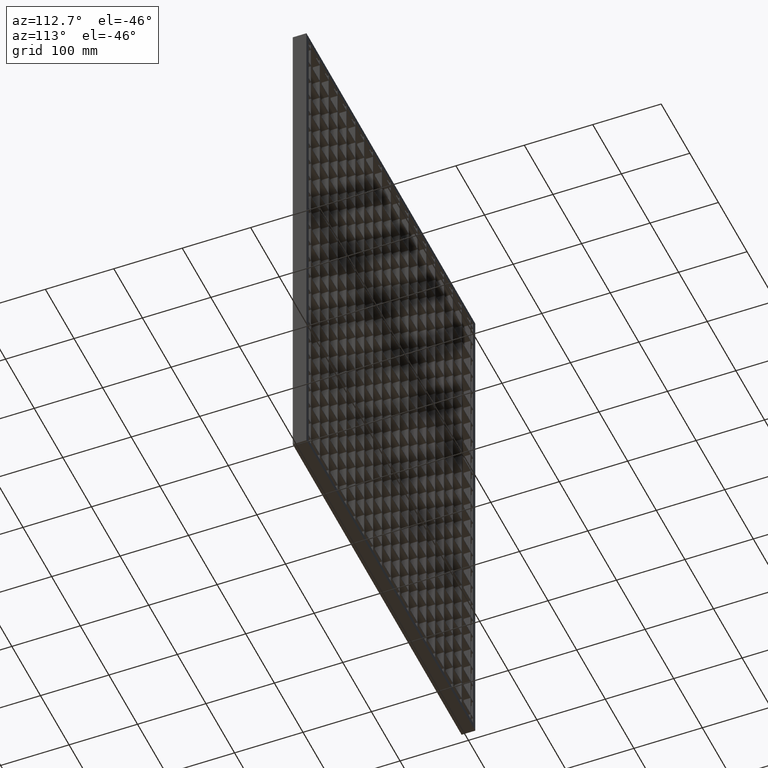
[diagram: clean part render]
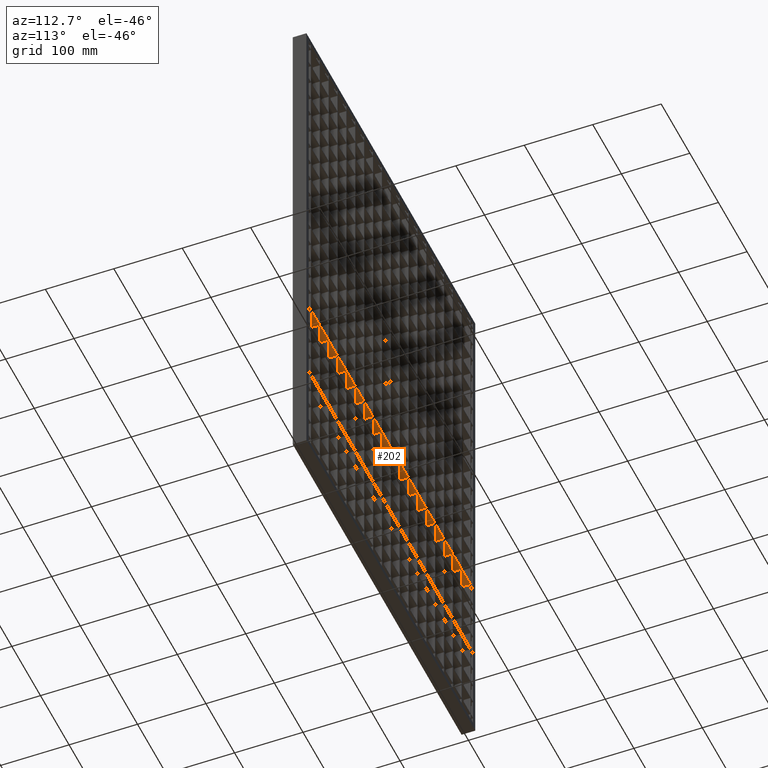
[diagram: same view with one face highlighted and labeled with its STEP entity id]
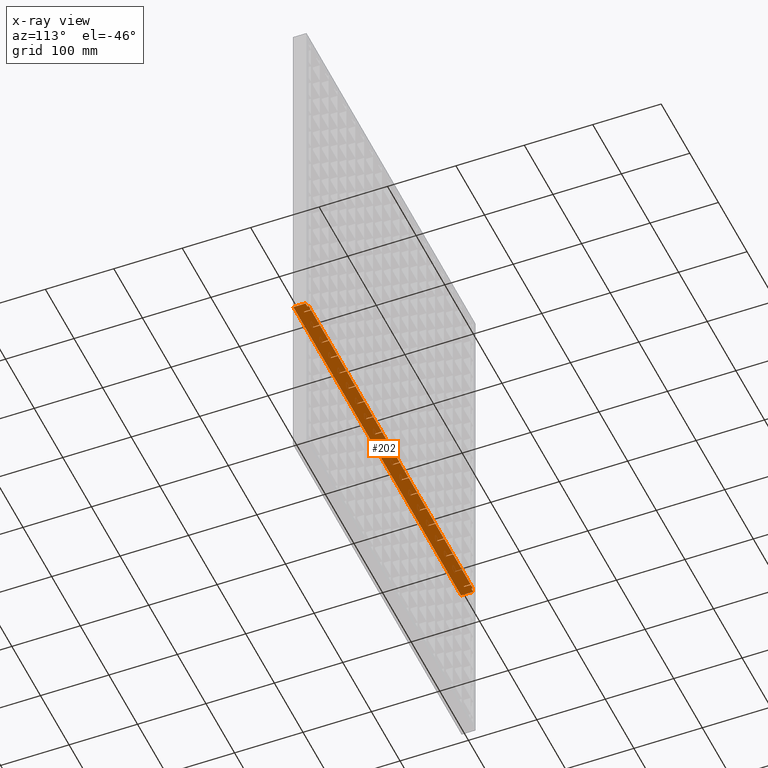
[diagram: x-ray of the same camera — body ghosted, the highlighted face saturated]
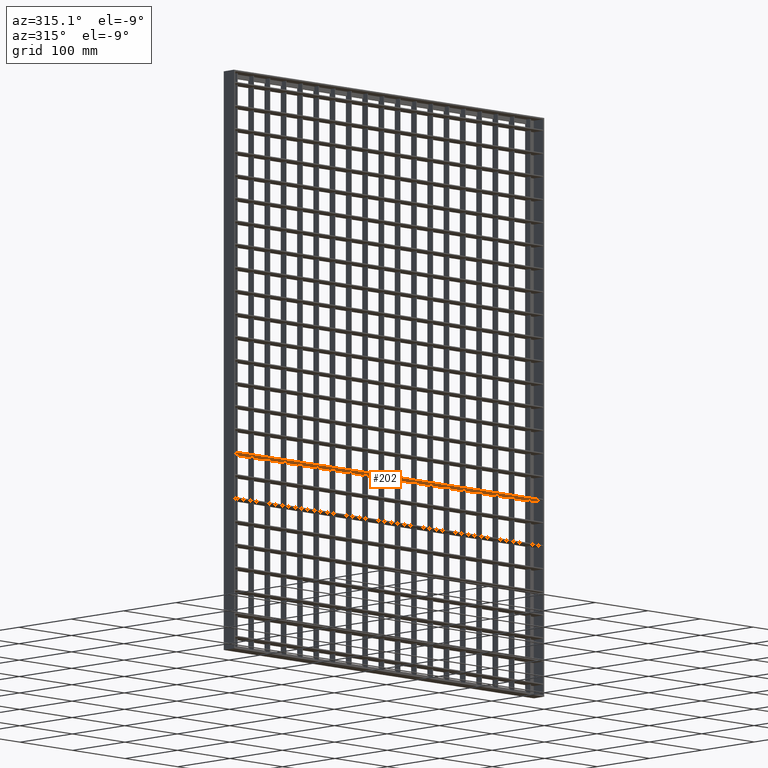
[diagram: same view with one face highlighted and labeled with its STEP entity id]
A machine part, auxiliary view. The second image highlights one B-rep face of the part: STEP entity #202.
The next image is the same camera in x-ray: the body ghosted, the highlighted face saturated — about 0% of this face is hidden behind the body in this view.
A second angle (auxiliary view) of the same face is appended — the face is thin or edge-on in the first view.
In plain terms, the highlighted planar face has unit normal (0, 0, 1).
Its self-contained STEP definition (entity closure, byte-faithful):
#127 = VERTEX_POINT ( 'NONE', #67595 ) ;
#148 = VERTEX_POINT ( 'NONE', #53166 ) ;
#202 = ADVANCED_FACE ( 'NONE', ( #9376 ), #4755, .F. ) ;
#321 = DIRECTION ( 'NONE',  ( -1.000000000000000000, -3.061616997868382600E-016, 0.0000000000000000000 ) ) ;
#407 = DIRECTION ( 'NONE',  ( -0.0000000000000000000, 1.000000000000000000, 0.0000000000000000000 ) ) ;
#656 = CARTESIAN_POINT ( 'NONE',  ( 295.5000000000000600, 1.718540578710336300E-015, -521.7499999999997700 ) ) ;
#802 = ORIENTED_EDGE ( 'NONE', *, *, #37504, .F. ) ;
#923 = VERTEX_POINT ( 'NONE', #60281 ) ;
#953 = EDGE_CURVE ( 'NONE', #11029, #4892, #46669, .T. ) ;
#1053 = EDGE_CURVE ( 'NONE', #4781, #48971, #15373, .T. ) ;
#1075 = LINE ( 'NONE', #21936, #58352 ) ;
#1157 = EDGE_CURVE ( 'NONE', #4623, #16089, #9327, .T. ) ;
#1550 = CARTESIAN_POINT ( 'NONE',  ( 326.5000000000000600, 10.00000000000009800, -521.7499999999997700 ) ) ;
#1648 = VERTEX_POINT ( 'NONE', #35391 ) ;
#1788 = VECTOR ( 'NONE', #66038, 1000.000000000000000 ) ;
#1815 = ORIENTED_EDGE ( 'NONE', *, *, #19252, .F. ) ;
#1845 = ORIENTED_EDGE ( 'NONE', *, *, #16406, .F. ) ;
#2033 = ORIENTED_EDGE ( 'NONE', *, *, #13863, .F. ) ;
#2077 = CARTESIAN_POINT ( 'NONE',  ( 294.5000000000000600, -9.999999999999817000, -521.7499999999997700 ) ) ;
#2163 = DIRECTION ( 'NONE',  ( -0.0000000000000000000, 1.000000000000000000, 0.0000000000000000000 ) ) ;
#2302 = DIRECTION ( 'NONE',  ( -0.0000000000000000000, 1.000000000000000000, 0.0000000000000000000 ) ) ;
#2484 = VERTEX_POINT ( 'NONE', #3738 ) ;
#2502 = CARTESIAN_POINT ( 'NONE',  ( 170.5000000000000300, -9.999999999999817000, -521.7499999999997700 ) ) ;
#2617 = CARTESIAN_POINT ( 'NONE',  ( 608.0561711201312400, 1.630640067418198700E-013, -521.7499999999997700 ) ) ;
#2864 = CARTESIAN_POINT ( 'NONE',  ( 608.0561711201312400, 10.00000000000018500, -521.7499999999997700 ) ) ;
#2978 = VECTOR ( 'NONE', #31104, 1000.000000000000000 ) ;
#3010 = VERTEX_POINT ( 'NONE', #54116 ) ;
#3073 = CARTESIAN_POINT ( 'NONE',  ( 608.0561711201312400, -5.551115123125782700E-014, -521.7499999999997700 ) ) ;
#3192 = CARTESIAN_POINT ( 'NONE',  ( 295.5000000000000600, 10.00000000000000200, -521.7499999999997700 ) ) ;
#3262 = VECTOR ( 'NONE', #18256, 1000.000000000000000 ) ;
#3390 = EDGE_CURVE ( 'NONE', #69482, #65245, #31431, .T. ) ;
#3472 = DIRECTION ( 'NONE',  ( -1.000000000000000000, -3.061616997868382600E-016, 0.0000000000000000000 ) ) ;
#3481 = CARTESIAN_POINT ( 'NONE',  ( 608.0561711201312400, 10.00000000000018500, -521.7499999999997700 ) ) ;
#3595 = LINE ( 'NONE', #36104, #59123 ) ;
#3615 = CARTESIAN_POINT ( 'NONE',  ( 170.5000000000000300, 1.412378878923498800E-015, -521.7499999999997700 ) ) ;
#3670 = ORIENTED_EDGE ( 'NONE', *, *, #12637, .F. ) ;
#3727 = EDGE_CURVE ( 'NONE', #41451, #58776, #43549, .T. ) ;
#3738 = CARTESIAN_POINT ( 'NONE',  ( 16.50000000000001400, 1.718540578710336300E-015, -521.7499999999997700 ) ) ;
#3832 = CARTESIAN_POINT ( 'NONE',  ( 46.50000000000004300, 1.412378878923498800E-015, -521.7499999999997700 ) ) ;
#3984 = VECTOR ( 'NONE', #49099, 1000.000000000000000 ) ;
#4053 = EDGE_CURVE ( 'NONE', #16089, #28270, #16628, .T. ) ;
#4096 = DIRECTION ( 'NONE',  ( -1.000000000000000000, 3.061616997868373300E-016, 0.0000000000000000000 ) ) ;
#4335 = DIRECTION ( 'NONE',  ( -0.0000000000000000000, 1.000000000000000000, 0.0000000000000000000 ) ) ;
#4452 = LINE ( 'NONE', #15277, #59149 ) ;
#4466 = CARTESIAN_POINT ( 'NONE',  ( 202.5000000000000300, 10.00000000000000200, -521.7499999999997700 ) ) ;
#4475 = EDGE_CURVE ( 'NONE', #50925, #50088, #44322, .T. ) ;
#4530 = VECTOR ( 'NONE', #53521, 1000.000000000000000 ) ;
#4560 = LINE ( 'NONE', #48623, #47079 ) ;
#4586 = EDGE_CURVE ( 'NONE', #35909, #33265, #32117, .T. ) ;
#4623 = VERTEX_POINT ( 'NONE', #43286 ) ;
#4662 = VERTEX_POINT ( 'NONE', #38975 ) ;
#4693 = ORIENTED_EDGE ( 'NONE', *, *, #5742, .T. ) ;
#4755 = PLANE ( 'NONE',  #20023 ) ;
#4781 = VERTEX_POINT ( 'NONE', #10877 ) ;
#4853 = VERTEX_POINT ( 'NONE', #50107 ) ;
#4892 = VERTEX_POINT ( 'NONE', #50332 ) ;
#4984 = VECTOR ( 'NONE', #29004, 1000.000000000000000 ) ;
#4991 = ORIENTED_EDGE ( 'NONE', *, *, #4475, .F. ) ;
#5061 = CARTESIAN_POINT ( 'NONE',  ( 608.0561711201312400, 10.00000000000018500, -521.7499999999997700 ) ) ;
#5083 = DIRECTION ( 'NONE',  ( -1.000000000000000000, -3.061616997868382600E-016, 0.0000000000000000000 ) ) ;
#5109 = EDGE_CURVE ( 'NONE', #50013, #49298, #21610, .T. ) ;
#5113 = LINE ( 'NONE', #52129, #14671 ) ;
#5118 = CARTESIAN_POINT ( 'NONE',  ( 356.5000000000001100, -9.999999999999817000, -521.7499999999997700 ) ) ;
#5188 = VECTOR ( 'NONE', #65304, 1000.000000000000000 ) ;
#5269 = CARTESIAN_POINT ( 'NONE',  ( 140.5000000000000600, -9.999999999999817000, -521.7499999999997700 ) ) ;
#5297 = VERTEX_POINT ( 'NONE', #14908 ) ;
#5314 = LINE ( 'NONE', #54050, #50397 ) ;
#5670 = CARTESIAN_POINT ( 'NONE',  ( 15.50000000000006900, 10.00000000000000200, -521.7499999999997700 ) ) ;
#5676 = LINE ( 'NONE', #43237, #55993 ) ;
#5742 = EDGE_CURVE ( 'NONE', #17214, #66960, #24012, .T. ) ;
#6280 = LINE ( 'NONE', #27674, #43594 ) ;
#6375 = ORIENTED_EDGE ( 'NONE', *, *, #48426, .F. ) ;
#6630 = ORIENTED_EDGE ( 'NONE', *, *, #23602, .T. ) ;
#6787 = DIRECTION ( 'NONE',  ( -0.0000000000000000000, 1.000000000000000000, 0.0000000000000000000 ) ) ;
#6791 = CARTESIAN_POINT ( 'NONE',  ( 543.5000000000001100, -9.999999999999817000, -521.7499999999997700 ) ) ;
#6840 = EDGE_CURVE ( 'NONE', #28270, #32536, #32505, .T. ) ;
#6847 = CARTESIAN_POINT ( 'NONE',  ( 608.0561711201312400, -3.816391647148975600E-014, -521.7499999999997700 ) ) ;
#6889 = VECTOR ( 'NONE', #47155, 1000.000000000000000 ) ;
#7051 = LINE ( 'NONE', #8960, #53841 ) ;
#7134 = CARTESIAN_POINT ( 'NONE',  ( 264.5000000000000600, 1.718540578710336300E-015, -521.7499999999997700 ) ) ;
#7569 = EDGE_CURVE ( 'NONE', #39773, #11616, #22823, .T. ) ;
#7855 = VERTEX_POINT ( 'NONE', #8044 ) ;
#8044 = CARTESIAN_POINT ( 'NONE',  ( 450.5000000000000600, 10.00000000000013500, -521.7499999999997700 ) ) ;
#8046 = ORIENTED_EDGE ( 'NONE', *, *, #60455, .T. ) ;
#8143 = VECTOR ( 'NONE', #28148, 1000.000000000000000 ) ;
#8185 = ORIENTED_EDGE ( 'NONE', *, *, #71209, .T. ) ;
#8246 = ORIENTED_EDGE ( 'NONE', *, *, #14864, .T. ) ;
#8387 = EDGE_CURVE ( 'NONE', #32536, #3010, #48705, .T. ) ;
#8475 = LINE ( 'NONE', #2864, #70036 ) ;
#8492 = DIRECTION ( 'NONE',  ( -0.0000000000000000000, 1.000000000000000000, 0.0000000000000000000 ) ) ;
#8528 = ORIENTED_EDGE ( 'NONE', *, *, #44433, .T. ) ;
#8731 = LINE ( 'NONE', #13974, #37435 ) ;
#8744 = VERTEX_POINT ( 'NONE', #54698 ) ;
#8807 = LINE ( 'NONE', #22485, #52114 ) ;
#8956 = VECTOR ( 'NONE', #26383, 1000.000000000000000 ) ;
#8960 = CARTESIAN_POINT ( 'NONE',  ( 264.5000000000000600, -9.999999999999817000, -521.7499999999997700 ) ) ;
#9033 = EDGE_CURVE ( 'NONE', #68754, #66960, #8731, .T. ) ;
#9094 = DIRECTION ( 'NONE',  ( -1.000000000000000000, 3.061616997868373300E-016, 0.0000000000000000000 ) ) ;
#9235 = LINE ( 'NONE', #9430, #12745 ) ;
#9273 = EDGE_CURVE ( 'NONE', #23875, #923, #43454, .T. ) ;
#9279 = CARTESIAN_POINT ( 'NONE',  ( 608.0561711201312400, -1.908195823574487800E-014, -521.7499999999997700 ) ) ;
#9327 = LINE ( 'NONE', #39921, #4984 ) ;
#9376 = FACE_OUTER_BOUND ( 'NONE', #29372, .T. ) ;
#9391 = CARTESIAN_POINT ( 'NONE',  ( 419.5000000000000600, -9.999999999999817000, -521.7499999999997700 ) ) ;
#9430 = CARTESIAN_POINT ( 'NONE',  ( 608.0561711201312400, 10.00000000000018500, -521.7499999999997700 ) ) ;
#9435 = LINE ( 'NONE', #30240, #12035 ) ;
#9579 = CARTESIAN_POINT ( 'NONE',  ( 480.5000000000000000, -9.999999999999817000, -521.7499999999997700 ) ) ;
#9666 = DIRECTION ( 'NONE',  ( 0.0000000000000000000, 1.000000000000000000, -0.0000000000000000000 ) ) ;
#9928 = VECTOR ( 'NONE', #48008, 1000.000000000000000 ) ;
#9970 = ORIENTED_EDGE ( 'NONE', *, *, #34662, .T. ) ;
#10012 = CARTESIAN_POINT ( 'NONE',  ( 574.5000000000000000, -9.999999999999817000, -521.7499999999997700 ) ) ;
#10250 = ORIENTED_EDGE ( 'NONE', *, *, #40673, .F. ) ;
#10364 = CARTESIAN_POINT ( 'NONE',  ( 608.0561711201312400, -9.999999999999817000, -521.7499999999997700 ) ) ;
#10395 = LINE ( 'NONE', #46157, #64139 ) ;
#10502 = VECTOR ( 'NONE', #3472, 1000.000000000000000 ) ;
#10856 = DIRECTION ( 'NONE',  ( 0.0000000000000000000, -1.000000000000000000, 0.0000000000000000000 ) ) ;
#10871 = EDGE_CURVE ( 'NONE', #27042, #65523, #46218, .T. ) ;
#10877 = CARTESIAN_POINT ( 'NONE',  ( 232.4999999999999700, 10.00000000000006900, -521.7499999999997700 ) ) ;
#10909 = CARTESIAN_POINT ( 'NONE',  ( 608.0561711201312400, 10.00000000000018500, -521.7499999999997700 ) ) ;
#11029 = VERTEX_POINT ( 'NONE', #11469 ) ;
#11045 = ORIENTED_EDGE ( 'NONE', *, *, #19977, .F. ) ;
#11200 = LINE ( 'NONE', #22805, #41588 ) ;
#11259 = VECTOR ( 'NONE', #34679, 1000.000000000000000 ) ;
#11264 = CARTESIAN_POINT ( 'NONE',  ( 588.0000000000001100, 8.000000000000001800, -521.7499999999998900 ) ) ;
#11330 = CARTESIAN_POINT ( 'NONE',  ( 170.5000000000000300, 10.00000000000005000, -521.7499999999997700 ) ) ;
#11335 = EDGE_CURVE ( 'NONE', #69019, #62763, #58467, .T. ) ;
#11469 = CARTESIAN_POINT ( 'NONE',  ( 388.4999999999999400, 1.300198461710429900E-015, -521.7499999999997700 ) ) ;
#11616 = VERTEX_POINT ( 'NONE', #43904 ) ;
#11680 = LINE ( 'NONE', #11942, #36753 ) ;
#11795 = DIRECTION ( 'NONE',  ( -1.000000000000000000, -3.061616997868382600E-016, 0.0000000000000000000 ) ) ;
#11942 = CARTESIAN_POINT ( 'NONE',  ( 608.0561711201312400, 10.00000000000018500, -521.7499999999997700 ) ) ;
#12035 = VECTOR ( 'NONE', #2302, 1000.000000000000000 ) ;
#12420 = VERTEX_POINT ( 'NONE', #47562 ) ;
#12505 = DIRECTION ( 'NONE',  ( 0.0000000000000000000, -1.000000000000000000, 0.0000000000000000000 ) ) ;
#12637 = EDGE_CURVE ( 'NONE', #55929, #41451, #61722, .T. ) ;
#12745 = VECTOR ( 'NONE', #32171, 1000.000000000000000 ) ;
#12784 = LINE ( 'NONE', #55397, #41353 ) ;
#13056 = CARTESIAN_POINT ( 'NONE',  ( 608.0561711201312400, 10.00000000000018500, -521.7499999999997700 ) ) ;
#13277 = DIRECTION ( 'NONE',  ( -1.000000000000000000, -3.061616997868382600E-016, 0.0000000000000000000 ) ) ;
#13349 = LINE ( 'NONE', #42442, #55834 ) ;
#13847 = VERTEX_POINT ( 'NONE', #3832 ) ;
#13863 = EDGE_CURVE ( 'NONE', #49298, #50180, #18275, .T. ) ;
#13970 = EDGE_CURVE ( 'NONE', #35998, #12420, #25204, .T. ) ;
#13974 = CARTESIAN_POINT ( 'NONE',  ( 608.0561711201312400, 10.00000000000018500, -521.7499999999997700 ) ) ;
#13992 = DIRECTION ( 'NONE',  ( -1.000000000000000000, -3.061616997868382600E-016, 0.0000000000000000000 ) ) ;
#14219 = DIRECTION ( 'NONE',  ( -1.000000000000000000, -3.061616997868382600E-016, 0.0000000000000000000 ) ) ;
#14341 = DIRECTION ( 'NONE',  ( -0.0000000000000000000, 1.000000000000000000, 0.0000000000000000000 ) ) ;
#14671 = VECTOR ( 'NONE', #31933, 1000.000000000000000 ) ;
#14748 = VERTEX_POINT ( 'NONE', #57787 ) ;
#14801 = EDGE_CURVE ( 'NONE', #28038, #21764, #45892, .T. ) ;
#14864 = EDGE_CURVE ( 'NONE', #50013, #29693, #46709, .T. ) ;
#14908 = CARTESIAN_POINT ( 'NONE',  ( 357.5000000000001100, 2.117593775218317500E-015, -521.7499999999997700 ) ) ;
#15083 = CARTESIAN_POINT ( 'NONE',  ( 449.5000000000000600, -9.999999999999817000, -521.7499999999997700 ) ) ;
#15104 = VERTEX_POINT ( 'NONE', #28416 ) ;
#15277 = CARTESIAN_POINT ( 'NONE',  ( 295.5000000000000600, -9.999999999999817000, -521.7499999999997700 ) ) ;
#15373 = LINE ( 'NONE', #49140, #42379 ) ;
#15394 = EDGE_CURVE ( 'NONE', #50180, #23821, #8475, .T. ) ;
#15437 = DIRECTION ( 'NONE',  ( 0.0000000000000000000, -1.000000000000000000, 0.0000000000000000000 ) ) ;
#15451 = DIRECTION ( 'NONE',  ( 0.0000000000000000000, -1.000000000000000000, 0.0000000000000000000 ) ) ;
#15545 = ORIENTED_EDGE ( 'NONE', *, *, #4586, .F. ) ;
#15637 = EDGE_CURVE ( 'NONE', #47044, #35494, #30110, .T. ) ;
#15723 = LINE ( 'NONE', #68692, #53895 ) ;
#15781 = VERTEX_POINT ( 'NONE', #656 ) ;
#16089 = VERTEX_POINT ( 'NONE', #36651 ) ;
#16249 = DIRECTION ( 'NONE',  ( -1.000000000000000000, -3.061616997868382600E-016, 0.0000000000000000000 ) ) ;
#16406 = EDGE_CURVE ( 'NONE', #33265, #7855, #11680, .T. ) ;
#16526 = ORIENTED_EDGE ( 'NONE', *, *, #24535, .T. ) ;
#16628 = LINE ( 'NONE', #6791, #59103 ) ;
#16871 = DIRECTION ( 'NONE',  ( -0.0000000000000000000, 1.000000000000000000, 0.0000000000000000000 ) ) ;
#17074 = EDGE_CURVE ( 'NONE', #55910, #17214, #21409, .T. ) ;
#17085 = ORIENTED_EDGE ( 'NONE', *, *, #11335, .T. ) ;
#17112 = VERTEX_POINT ( 'NONE', #57362 ) ;
#17125 = ORIENTED_EDGE ( 'NONE', *, *, #29156, .F. ) ;
#17214 = VERTEX_POINT ( 'NONE', #35062 ) ;
#17271 = CARTESIAN_POINT ( 'NONE',  ( 388.5000000000000000, 10.00000000000011700, -521.7499999999997700 ) ) ;
#17305 = CARTESIAN_POINT ( 'NONE',  ( 232.5000000000000300, -9.999999999999817000, -521.7499999999997700 ) ) ;
#17711 = ORIENTED_EDGE ( 'NONE', *, *, #44119, .T. ) ;
#17788 = ORIENTED_EDGE ( 'NONE', *, *, #5109, .F. ) ;
#17807 = EDGE_CURVE ( 'NONE', #14748, #25676, #28256, .T. ) ;
#18076 = LINE ( 'NONE', #6847, #3262 ) ;
#18256 = DIRECTION ( 'NONE',  ( -1.000000000000000000, 3.061616997868373300E-016, 0.0000000000000000000 ) ) ;
#18273 = VERTEX_POINT ( 'NONE', #28653 ) ;
#18275 = LINE ( 'NONE', #31739, #65057 ) ;
#18374 = CARTESIAN_POINT ( 'NONE',  ( 15.50000000000001400, 1.412378878923498800E-015, -521.7499999999997700 ) ) ;
#18710 = LINE ( 'NONE', #22884, #46447 ) ;
#18737 = ORIENTED_EDGE ( 'NONE', *, *, #10871, .F. ) ;
#18896 = LINE ( 'NONE', #62414, #61382 ) ;
#18914 = VECTOR ( 'NONE', #14341, 1000.000000000000000 ) ;
#18961 = EDGE_CURVE ( 'NONE', #4853, #63640, #23650, .T. ) ;
#19140 = DIRECTION ( 'NONE',  ( -1.000000000000000000, -3.061616997868382600E-016, 0.0000000000000000000 ) ) ;
#19252 = EDGE_CURVE ( 'NONE', #24269, #55929, #41867, .T. ) ;
#19297 = CARTESIAN_POINT ( 'NONE',  ( 140.5000000000000300, 10.00000000000000200, -521.7499999999997700 ) ) ;
#19645 = CARTESIAN_POINT ( 'NONE',  ( 171.5000000000000300, 1.718540578710336300E-015, -521.7499999999997700 ) ) ;
#19663 = CARTESIAN_POINT ( 'NONE',  ( 109.5000000000000400, -9.999999999999817000, -521.7499999999997700 ) ) ;
#19865 = CARTESIAN_POINT ( 'NONE',  ( 542.5000000000000000, 1.734723475976807100E-015, -521.7499999999997700 ) ) ;
#19977 = EDGE_CURVE ( 'NONE', #3010, #27042, #5314, .T. ) ;
#20023 = AXIS2_PLACEMENT_3D ( 'NONE', #10364, #42609, #53729 ) ;
#20355 = VECTOR ( 'NONE', #67980, 1000.000000000000000 ) ;
#20696 = ORIENTED_EDGE ( 'NONE', *, *, #68315, .F. ) ;
#21006 = ORIENTED_EDGE ( 'NONE', *, *, #66414, .T. ) ;
#21078 = DIRECTION ( 'NONE',  ( 0.0000000000000000000, -1.000000000000000000, 0.0000000000000000000 ) ) ;
#21228 = DIRECTION ( 'NONE',  ( -1.000000000000000000, 3.061616997868373300E-016, 0.0000000000000000000 ) ) ;
#21400 = DIRECTION ( 'NONE',  ( 0.0000000000000000000, -1.000000000000000000, 0.0000000000000000000 ) ) ;
#21409 = LINE ( 'NONE', #68054, #24909 ) ;
#21610 = LINE ( 'NONE', #23898, #6889 ) ;
#21615 = ORIENTED_EDGE ( 'NONE', *, *, #57366, .F. ) ;
#21764 = VERTEX_POINT ( 'NONE', #19645 ) ;
#21888 = ORIENTED_EDGE ( 'NONE', *, *, #41038, .T. ) ;
#21892 = VECTOR ( 'NONE', #44523, 1000.000000000000000 ) ;
#21936 = CARTESIAN_POINT ( 'NONE',  ( 78.50000000000001400, -9.999999999999817000, -521.7499999999997700 ) ) ;
#21949 = DIRECTION ( 'NONE',  ( -1.000000000000000000, -3.061616997868382600E-016, 0.0000000000000000000 ) ) ;
#21986 = VERTEX_POINT ( 'NONE', #44833 ) ;
#22017 = ORIENTED_EDGE ( 'NONE', *, *, #14801, .T. ) ;
#22245 = ORIENTED_EDGE ( 'NONE', *, *, #55474, .T. ) ;
#22295 = VERTEX_POINT ( 'NONE', #18374 ) ;
#22341 = CARTESIAN_POINT ( 'NONE',  ( 263.5000000000000600, 1.412378878923498800E-015, -521.7499999999997700 ) ) ;
#22415 = CARTESIAN_POINT ( 'NONE',  ( 608.0561711201312400, 10.00000000000018500, -521.7499999999997700 ) ) ;
#22478 = DIRECTION ( 'NONE',  ( 0.0000000000000000000, -1.000000000000000000, 0.0000000000000000000 ) ) ;
#22485 = CARTESIAN_POINT ( 'NONE',  ( 608.0561711201312400, 10.00000000000018500, -521.7499999999997700 ) ) ;
#22546 = VECTOR ( 'NONE', #27962, 1000.000000000000000 ) ;
#22547 = DIRECTION ( 'NONE',  ( -1.000000000000000000, -3.061616997868382600E-016, 0.0000000000000000000 ) ) ;
#22709 = CARTESIAN_POINT ( 'NONE',  ( 201.5000000000000300, 1.412378878923498800E-015, -521.7499999999997700 ) ) ;
#22805 = CARTESIAN_POINT ( 'NONE',  ( 608.0561711201312400, 1.821459649775647400E-013, -521.7499999999997700 ) ) ;
#22821 = CARTESIAN_POINT ( 'NONE',  ( 46.50000000000009900, 10.00000000000001200, -521.7499999999997700 ) ) ;
#22823 = LINE ( 'NONE', #53545, #46290 ) ;
#22884 = CARTESIAN_POINT ( 'NONE',  ( 573.5000000000001100, -9.999999999999817000, -521.7499999999997700 ) ) ;
#22932 = VERTEX_POINT ( 'NONE', #29947 ) ;
#23291 = CARTESIAN_POINT ( 'NONE',  ( 201.5000000000000000, -9.999999999999817000, -521.7499999999997700 ) ) ;
#23602 = EDGE_CURVE ( 'NONE', #15104, #148, #33615, .T. ) ;
#23650 = LINE ( 'NONE', #36032, #24534 ) ;
#23821 = VERTEX_POINT ( 'NONE', #43178 ) ;
#23835 = DIRECTION ( 'NONE',  ( -0.0000000000000000000, 1.000000000000000000, 0.0000000000000000000 ) ) ;
#23875 = VERTEX_POINT ( 'NONE', #70812 ) ;
#23898 = CARTESIAN_POINT ( 'NONE',  ( 295.0000000000000600, 8.000000000000001800, -521.7499999999997700 ) ) ;
#24004 = VERTEX_POINT ( 'NONE', #27378 ) ;
#24007 = ORIENTED_EDGE ( 'NONE', *, *, #63653, .F. ) ;
#24012 = LINE ( 'NONE', #5269, #37023 ) ;
#24166 = ORIENTED_EDGE ( 'NONE', *, *, #33562, .F. ) ;
#24261 = ORIENTED_EDGE ( 'NONE', *, *, #7569, .F. ) ;
#24269 = VERTEX_POINT ( 'NONE', #36290 ) ;
#24302 = DIRECTION ( 'NONE',  ( -1.000000000000000000, 0.0000000000000000000, 0.0000000000000000000 ) ) ;
#24326 = EDGE_CURVE ( 'NONE', #127, #30558, #31756, .T. ) ;
#24422 = VECTOR ( 'NONE', #4096, 1000.000000000000000 ) ;
#24453 = VECTOR ( 'NONE', #30680, 1000.000000000000000 ) ;
#24534 = VECTOR ( 'NONE', #46493, 1000.000000000000000 ) ;
#24535 = EDGE_CURVE ( 'NONE', #1648, #22932, #61240, .T. ) ;
#24586 = ORIENTED_EDGE ( 'NONE', *, *, #3727, .F. ) ;
#24770 = ORIENTED_EDGE ( 'NONE', *, *, #60441, .F. ) ;
#24909 = VECTOR ( 'NONE', #29737, 1000.000000000000000 ) ;
#25120 = CARTESIAN_POINT ( 'NONE',  ( 608.0561711201312400, -9.999999999999817000, -521.7499999999997700 ) ) ;
#25125 = VERTEX_POINT ( 'NONE', #35072 ) ;
#25192 = EDGE_CURVE ( 'NONE', #69019, #55385, #44719, .T. ) ;
#25204 = LINE ( 'NONE', #71972, #38214 ) ;
#25238 = CARTESIAN_POINT ( 'NONE',  ( 582.0000000000001100, 10.00000000000000200, -521.7499999999998900 ) ) ;
#25615 = DIRECTION ( 'NONE',  ( 0.0000000000000000000, -1.000000000000000000, 0.0000000000000000000 ) ) ;
#25664 = ORIENTED_EDGE ( 'NONE', *, *, #42320, .F. ) ;
#25676 = VERTEX_POINT ( 'NONE', #26317 ) ;
#25961 = LINE ( 'NONE', #36293, #33732 ) ;
#25971 = DIRECTION ( 'NONE',  ( -1.000000000000000000, -3.061616997868382600E-016, 0.0000000000000000000 ) ) ;
#26034 = EDGE_CURVE ( 'NONE', #58776, #61556, #67079, .T. ) ;
#26058 = VECTOR ( 'NONE', #42097, 1000.000000000000000 ) ;
#26214 = CARTESIAN_POINT ( 'NONE',  ( 326.5000000000000600, 1.200265612749447400E-015, -521.7499999999997700 ) ) ;
#26223 = ORIENTED_EDGE ( 'NONE', *, *, #6840, .F. ) ;
#26317 = CARTESIAN_POINT ( 'NONE',  ( 47.50000000000004300, 10.00000000000000200, -521.7499999999997700 ) ) ;
#26383 = DIRECTION ( 'NONE',  ( -1.000000000000000000, 3.061616997868373300E-016, 0.0000000000000000000 ) ) ;
#26575 = EDGE_CURVE ( 'NONE', #30558, #35998, #33205, .T. ) ;
#26784 = ORIENTED_EDGE ( 'NONE', *, *, #46525, .F. ) ;
#26833 = EDGE_CURVE ( 'NONE', #4662, #55910, #29678, .T. ) ;
#27042 = VERTEX_POINT ( 'NONE', #46429 ) ;
#27101 = DIRECTION ( 'NONE',  ( -1.000000000000000000, -3.061616997868382600E-016, 0.0000000000000000000 ) ) ;
#27296 = CARTESIAN_POINT ( 'NONE',  ( 78.50000000000004300, 10.00000000000000200, -521.7499999999997700 ) ) ;
#27378 = CARTESIAN_POINT ( 'NONE',  ( 450.5000000000000000, 1.400131310671381300E-015, -521.7499999999997700 ) ) ;
#27674 = CARTESIAN_POINT ( 'NONE',  ( 608.0561711201312400, 1.162264728904460800E-013, -521.7499999999997700 ) ) ;
#27962 = DIRECTION ( 'NONE',  ( -1.000000000000000000, 3.061616997868373300E-016, 0.0000000000000000000 ) ) ;
#28038 = VERTEX_POINT ( 'NONE', #3615 ) ;
#28088 = CARTESIAN_POINT ( 'NONE',  ( 356.5000000000001100, 10.00000000000000200, -521.7499999999998900 ) ) ;
#28148 = DIRECTION ( 'NONE',  ( 0.0000000000000000000, -1.000000000000000000, 0.0000000000000000000 ) ) ;
#28256 = LINE ( 'NONE', #51448, #62040 ) ;
#28270 = VERTEX_POINT ( 'NONE', #50879 ) ;
#28416 = CARTESIAN_POINT ( 'NONE',  ( 109.5000000000000400, 1.718540578710336300E-015, -521.7499999999997700 ) ) ;
#28581 = CARTESIAN_POINT ( 'NONE',  ( 449.5000000000000600, 10.00000000000000200, -521.7499999999998900 ) ) ;
#28653 = CARTESIAN_POINT ( 'NONE',  ( 232.5000000000000300, 1.412378878923498800E-015, -521.7499999999997700 ) ) ;
#28707 = CARTESIAN_POINT ( 'NONE',  ( 108.5000000000000400, 1.412378878923498800E-015, -521.7499999999997700 ) ) ;
#29004 = DIRECTION ( 'NONE',  ( -1.000000000000000000, -3.061616997868382600E-016, 0.0000000000000000000 ) ) ;
#29127 = ORIENTED_EDGE ( 'NONE', *, *, #24326, .F. ) ;
#29156 = EDGE_CURVE ( 'NONE', #43004, #56165, #50517, .T. ) ;
#29196 = VERTEX_POINT ( 'NONE', #32035 ) ;
#29202 = EDGE_CURVE ( 'NONE', #21986, #29196, #30578, .T. ) ;
#29372 = EDGE_LOOP ( 'NONE', ( #10250, #48437, #2033, #17788, #8246, #58441, #65383, #26784, #24261, #30852, #50170, #46002, #69374, #60850, #38843, #8046, #61857, #32827, #42507, #16526, #17711, #42268, #17085, #71286, #6630, #24770, #64531, #53959, #4693, #60863, #8528, #22017, #22245, #68711, #63947, #56534, #9970, #68991, #69626, #71948, #71302, #33942, #41203, #21888, #44639, #4991, #52343, #8185, #21006, #20696, #802, #45020, #24586, #3670, #1815, #40019, #53563, #46744, #25664, #38316, #24166, #45666, #39881, #60469, #29127, #6375, #17125, #59652, #59693, #1845, #15545, #21615, #43667, #24007, #34040, #58506, #18737, #11045, #30054, #26223, #44175, #66825, #35043, #39423 ) ) ;
#29454 = CARTESIAN_POINT ( 'NONE',  ( 608.0561711201312400, 1.353084311261909500E-013, -521.7499999999997700 ) ) ;
#29456 = CARTESIAN_POINT ( 'NONE',  ( 481.4999999999999400, 5.827359971634812200E-016, -521.7499999999997700 ) ) ;
#29678 = LINE ( 'NONE', #50087, #62624 ) ;
#29693 = VERTEX_POINT ( 'NONE', #53054 ) ;
#29737 = DIRECTION ( 'NONE',  ( 1.000000000000000000, 3.061616997868373300E-016, -0.0000000000000000000 ) ) ;
#29947 = CARTESIAN_POINT ( 'NONE',  ( 78.50000000000004300, 1.718540578710336300E-015, -521.7499999999997700 ) ) ;
#30043 = VECTOR ( 'NONE', #15437, 1000.000000000000000 ) ;
#30054 = ORIENTED_EDGE ( 'NONE', *, *, #8387, .F. ) ;
#30061 = VECTOR ( 'NONE', #4335, 1000.000000000000000 ) ;
#30110 = LINE ( 'NONE', #71501, #39658 ) ;
#30240 = CARTESIAN_POINT ( 'NONE',  ( 511.5000000000000600, -9.999999999999817000, -521.7499999999997700 ) ) ;
#30364 = LINE ( 'NONE', #68394, #11259 ) ;
#30558 = VERTEX_POINT ( 'NONE', #58156 ) ;
#30578 = LINE ( 'NONE', #37354, #38356 ) ;
#30680 = DIRECTION ( 'NONE',  ( 0.0000000000000000000, -1.000000000000000000, 0.0000000000000000000 ) ) ;
#30852 = ORIENTED_EDGE ( 'NONE', *, *, #54610, .F. ) ;
#31072 = CARTESIAN_POINT ( 'NONE',  ( 108.5000000000000400, -9.999999999999817000, -521.7499999999997700 ) ) ;
#31104 = DIRECTION ( 'NONE',  ( -1.000000000000000000, 3.061616997868373300E-016, 0.0000000000000000000 ) ) ;
#31281 = DIRECTION ( 'NONE',  ( 0.0000000000000000000, -1.000000000000000000, 0.0000000000000000000 ) ) ;
#31379 = CARTESIAN_POINT ( 'NONE',  ( 608.0561711201312400, -8.500145032286354800E-014, -521.7499999999997700 ) ) ;
#31431 = LINE ( 'NONE', #45437, #38387 ) ;
#31440 = DIRECTION ( 'NONE',  ( -0.0000000000000000000, 1.000000000000000000, 0.0000000000000000000 ) ) ;
#31739 = CARTESIAN_POINT ( 'NONE',  ( 582.0000000000000000, 8.000000000000001800, -521.7499999999997700 ) ) ;
#31756 = LINE ( 'NONE', #9391, #33530 ) ;
#31912 = EDGE_CURVE ( 'NONE', #12420, #39565, #68269, .T. ) ;
#31933 = DIRECTION ( 'NONE',  ( 1.000000000000000000, 3.061616997868373300E-016, -0.0000000000000000000 ) ) ;
#32035 = CARTESIAN_POINT ( 'NONE',  ( 573.5000000000001100, 1.734723475976807100E-015, -521.7499999999997700 ) ) ;
#32110 = LINE ( 'NONE', #17305, #59859 ) ;
#32117 = LINE ( 'NONE', #9579, #5188 ) ;
#32171 = DIRECTION ( 'NONE',  ( -1.000000000000000000, -3.061616997868382600E-016, 0.0000000000000000000 ) ) ;
#32505 = LINE ( 'NONE', #9279, #2978 ) ;
#32536 = VERTEX_POINT ( 'NONE', #19865 ) ;
#32682 = VECTOR ( 'NONE', #22478, 1000.000000000000000 ) ;
#32827 = ORIENTED_EDGE ( 'NONE', *, *, #53634, .F. ) ;
#33205 = LINE ( 'NONE', #3073, #4530 ) ;
#33265 = VERTEX_POINT ( 'NONE', #43533 ) ;
#33366 = EDGE_CURVE ( 'NONE', #29196, #4623, #18710, .T. ) ;
#33511 = VECTOR ( 'NONE', #25971, 1000.000000000000000 ) ;
#33530 = VECTOR ( 'NONE', #25615, 1000.000000000000000 ) ;
#33562 = EDGE_CURVE ( 'NONE', #39565, #11029, #35154, .T. ) ;
#33615 = LINE ( 'NONE', #19663, #18914 ) ;
#33718 = VERTEX_POINT ( 'NONE', #41555 ) ;
#33732 = VECTOR ( 'NONE', #31440, 1000.000000000000000 ) ;
#33785 = CARTESIAN_POINT ( 'NONE',  ( 2.000000000000001800, -10.00000000000000200, -521.7499999999997700 ) ) ;
#33942 = ORIENTED_EDGE ( 'NONE', *, *, #9273, .F. ) ;
#33992 = CARTESIAN_POINT ( 'NONE',  ( 608.0561711201312400, -4.683753385137379200E-014, -521.7499999999997700 ) ) ;
#34040 = ORIENTED_EDGE ( 'NONE', *, *, #68455, .F. ) ;
#34418 = CARTESIAN_POINT ( 'NONE',  ( 542.5000000000000000, -9.999999999999817000, -521.7499999999997700 ) ) ;
#34433 = EDGE_CURVE ( 'NONE', #17112, #5297, #13349, .T. ) ;
#34570 = EDGE_CURVE ( 'NONE', #5297, #24269, #51423, .T. ) ;
#34662 = EDGE_CURVE ( 'NONE', #51377, #48971, #64448, .T. ) ;
#34670 = CARTESIAN_POINT ( 'NONE',  ( 325.5000000000000600, 1.734723475976807100E-015, -521.7499999999997700 ) ) ;
#34679 = DIRECTION ( 'NONE',  ( 1.000000000000000000, 3.061616997868373300E-016, -0.0000000000000000000 ) ) ;
#34892 = EDGE_CURVE ( 'NONE', #29693, #63640, #58288, .T. ) ;
#35043 = ORIENTED_EDGE ( 'NONE', *, *, #33366, .F. ) ;
#35062 = CARTESIAN_POINT ( 'NONE',  ( 140.5000000000000300, 1.718540578710336300E-015, -521.7499999999997700 ) ) ;
#35072 = CARTESIAN_POINT ( 'NONE',  ( 294.5000000000000600, 1.412378878923498800E-015, -521.7499999999997700 ) ) ;
#35083 = DIRECTION ( 'NONE',  ( 0.0000000000000000000, -1.000000000000000000, 0.0000000000000000000 ) ) ;
#35114 = LINE ( 'NONE', #57300, #20355 ) ;
#35150 = VECTOR ( 'NONE', #13992, 1000.000000000000000 ) ;
#35154 = LINE ( 'NONE', #40125, #48179 ) ;
#35179 = CARTESIAN_POINT ( 'NONE',  ( 202.5000000000000300, 1.718540578710336300E-015, -521.7499999999997700 ) ) ;
#35391 = CARTESIAN_POINT ( 'NONE',  ( 77.50000000000004300, 1.412378878923498800E-015, -521.7499999999997700 ) ) ;
#35494 = VERTEX_POINT ( 'NONE', #47250 ) ;
#35709 = VECTOR ( 'NONE', #21078, 1000.000000000000000 ) ;
#35909 = VERTEX_POINT ( 'NONE', #61026 ) ;
#35952 = CARTESIAN_POINT ( 'NONE',  ( 588.0000000000000000, -9.999999999999817000, -521.7499999999997700 ) ) ;
#35998 = VERTEX_POINT ( 'NONE', #68292 ) ;
#36032 = CARTESIAN_POINT ( 'NONE',  ( 2.000000000000003600, -10.00000000000000000, -521.7499999999997700 ) ) ;
#36104 = CARTESIAN_POINT ( 'NONE',  ( 233.5000000000000300, -9.999999999999817000, -521.7499999999997700 ) ) ;
#36141 = CARTESIAN_POINT ( 'NONE',  ( 325.5000000000000600, 10.00000000000000200, -521.7499999999997700 ) ) ;
#36290 = CARTESIAN_POINT ( 'NONE',  ( 356.5000000000001100, 1.734723475976807100E-015, -521.7499999999997700 ) ) ;
#36293 = CARTESIAN_POINT ( 'NONE',  ( 16.50000000000007100, -9.999999999999817000, -521.7499999999997700 ) ) ;
#36338 = VERTEX_POINT ( 'NONE', #5670 ) ;
#36530 = EDGE_CURVE ( 'NONE', #24004, #43004, #50317, .T. ) ;
#36651 = CARTESIAN_POINT ( 'NONE',  ( 543.5000000000001100, 10.00000000000016500, -521.7499999999997700 ) ) ;
#36684 = VECTOR ( 'NONE', #407, 1000.000000000000000 ) ;
#36753 = VECTOR ( 'NONE', #22547, 1000.000000000000000 ) ;
#37010 = EDGE_CURVE ( 'NONE', #22295, #2484, #11200, .T. ) ;
#37023 = VECTOR ( 'NONE', #49649, 1000.000000000000000 ) ;
#37149 = DIRECTION ( 'NONE',  ( 0.0000000000000000000, -1.000000000000000000, 0.0000000000000000000 ) ) ;
#37354 = CARTESIAN_POINT ( 'NONE',  ( 608.0561711201312400, -8.673617379884035500E-015, -521.7499999999997700 ) ) ;
#37435 = VECTOR ( 'NONE', #14219, 1000.000000000000000 ) ;
#37504 = EDGE_CURVE ( 'NONE', #61556, #57428, #59709, .T. ) ;
#37724 = VERTEX_POINT ( 'NONE', #53342 ) ;
#37809 = LINE ( 'NONE', #59975, #3984 ) ;
#37882 = DIRECTION ( 'NONE',  ( 0.0000000000000000000, -1.000000000000000000, 0.0000000000000000000 ) ) ;
#38079 = VECTOR ( 'NONE', #38999, 1000.000000000000000 ) ;
#38214 = VECTOR ( 'NONE', #38750, 1000.000000000000000 ) ;
#38295 = LINE ( 'NONE', #70533, #24422 ) ;
#38316 = ORIENTED_EDGE ( 'NONE', *, *, #953, .F. ) ;
#38356 = VECTOR ( 'NONE', #60394, 1000.000000000000000 ) ;
#38387 = VECTOR ( 'NONE', #39640, 1000.000000000000000 ) ;
#38485 = EDGE_CURVE ( 'NONE', #7855, #24004, #62081, .T. ) ;
#38750 = DIRECTION ( 'NONE',  ( -0.0000000000000000000, 1.000000000000000000, 0.0000000000000000000 ) ) ;
#38767 = CARTESIAN_POINT ( 'NONE',  ( 202.5000000000000000, -9.999999999999817000, -521.7499999999997700 ) ) ;
#38843 = ORIENTED_EDGE ( 'NONE', *, *, #48968, .T. ) ;
#38975 = CARTESIAN_POINT ( 'NONE',  ( 139.5000000000000000, 10.00000000000004100, -521.7499999999997700 ) ) ;
#38999 = DIRECTION ( 'NONE',  ( -1.000000000000000000, -3.061616997868382600E-016, 0.0000000000000000000 ) ) ;
#39423 = ORIENTED_EDGE ( 'NONE', *, *, #29202, .F. ) ;
#39565 = VERTEX_POINT ( 'NONE', #17271 ) ;
#39640 = DIRECTION ( 'NONE',  ( 0.0000000000000000000, -1.000000000000000000, 0.0000000000000000000 ) ) ;
#39658 = VECTOR ( 'NONE', #27101, 1000.000000000000000 ) ;
#39773 = VERTEX_POINT ( 'NONE', #47974 ) ;
#39787 = VECTOR ( 'NONE', #2163, 1000.000000000000000 ) ;
#39826 = EDGE_CURVE ( 'NONE', #33718, #923, #3595, .T. ) ;
#39881 = ORIENTED_EDGE ( 'NONE', *, *, #13970, .F. ) ;
#39921 = CARTESIAN_POINT ( 'NONE',  ( 608.0561711201312400, 10.00000000000018500, -521.7499999999997700 ) ) ;
#40019 = ORIENTED_EDGE ( 'NONE', *, *, #34570, .F. ) ;
#40125 = CARTESIAN_POINT ( 'NONE',  ( 388.5000000000000000, -9.999999999999817000, -521.7499999999997700 ) ) ;
#40673 = EDGE_CURVE ( 'NONE', #23821, #21986, #53812, .T. ) ;
#40727 = EDGE_CURVE ( 'NONE', #4781, #18273, #32110, .T. ) ;
#41038 = EDGE_CURVE ( 'NONE', #67681, #43186, #5113, .T. ) ;
#41140 = VERTEX_POINT ( 'NONE', #54220 ) ;
#41203 = ORIENTED_EDGE ( 'NONE', *, *, #43267, .T. ) ;
#41340 = CARTESIAN_POINT ( 'NONE',  ( 608.0561711201312400, 10.00000000000018500, -521.7499999999997700 ) ) ;
#41353 = VECTOR ( 'NONE', #321, 1000.000000000000000 ) ;
#41451 = VERTEX_POINT ( 'NONE', #1550 ) ;
#41502 = CARTESIAN_POINT ( 'NONE',  ( 325.5000000000000600, -9.999999999999817000, -521.7499999999997700 ) ) ;
#41555 = CARTESIAN_POINT ( 'NONE',  ( 233.5000000000000300, 1.718540578710336300E-015, -521.7499999999997700 ) ) ;
#41588 = VECTOR ( 'NONE', #56503, 1000.000000000000000 ) ;
#41664 = CARTESIAN_POINT ( 'NONE',  ( 294.5000000000000600, 10.00000000000008900, -521.7499999999997700 ) ) ;
#41707 = DIRECTION ( 'NONE',  ( -0.0000000000000000000, 1.000000000000000000, 0.0000000000000000000 ) ) ;
#41867 = LINE ( 'NONE', #5118, #60048 ) ;
#41922 = LINE ( 'NONE', #22415, #60947 ) ;
#42024 = CARTESIAN_POINT ( 'NONE',  ( 608.0561711201312400, 10.00000000000018500, -521.7499999999997700 ) ) ;
#42097 = DIRECTION ( 'NONE',  ( -1.000000000000000000, -3.061616997868382600E-016, 0.0000000000000000000 ) ) ;
#42268 = ORIENTED_EDGE ( 'NONE', *, *, #25192, .F. ) ;
#42320 = EDGE_CURVE ( 'NONE', #4892, #46227, #46540, .T. ) ;
#42379 = VECTOR ( 'NONE', #21949, 1000.000000000000000 ) ;
#42442 = CARTESIAN_POINT ( 'NONE',  ( 357.5000000000001100, -9.999999999999817000, -521.7499999999997700 ) ) ;
#42507 = ORIENTED_EDGE ( 'NONE', *, *, #43989, .T. ) ;
#42609 = DIRECTION ( 'NONE',  ( 0.0000000000000000000, 0.0000000000000000000, 1.000000000000000000 ) ) ;
#43004 = VERTEX_POINT ( 'NONE', #48387 ) ;
#43082 = CARTESIAN_POINT ( 'NONE',  ( 450.5000000000000600, -9.999999999999817000, -521.7499999999997700 ) ) ;
#43178 = CARTESIAN_POINT ( 'NONE',  ( 574.5000000000000000, 10.00000000000017400, -521.7499999999997700 ) ) ;
#43186 = VERTEX_POINT ( 'NONE', #7134 ) ;
#43237 = CARTESIAN_POINT ( 'NONE',  ( 608.0561711201312400, 9.714451465470119700E-014, -521.7499999999997700 ) ) ;
#43267 = EDGE_CURVE ( 'NONE', #23875, #67681, #35114, .T. ) ;
#43286 = CARTESIAN_POINT ( 'NONE',  ( 573.5000000000001100, 10.00000000000000200, -521.7499999999998900 ) ) ;
#43454 = LINE ( 'NONE', #54633, #1788 ) ;
#43533 = CARTESIAN_POINT ( 'NONE',  ( 480.5000000000000000, 10.00000000000000200, -521.7499999999998900 ) ) ;
#43549 = LINE ( 'NONE', #60628, #35709 ) ;
#43594 = VECTOR ( 'NONE', #45154, 1000.000000000000000 ) ;
#43667 = ORIENTED_EDGE ( 'NONE', *, *, #3390, .F. ) ;
#43704 = DIRECTION ( 'NONE',  ( 0.0000000000000000000, -1.000000000000000000, 0.0000000000000000000 ) ) ;
#43904 = CARTESIAN_POINT ( 'NONE',  ( 7.999999999999996400, 8.000000000000001800, -521.7499999999997700 ) ) ;
#43989 = EDGE_CURVE ( 'NONE', #37724, #1648, #4560, .T. ) ;
#44119 = EDGE_CURVE ( 'NONE', #22932, #55385, #1075, .T. ) ;
#44175 = ORIENTED_EDGE ( 'NONE', *, *, #4053, .F. ) ;
#44322 = LINE ( 'NONE', #3481, #26058 ) ;
#44433 = EDGE_CURVE ( 'NONE', #68754, #28038, #60921, .T. ) ;
#44523 = DIRECTION ( 'NONE',  ( -0.0000000000000000000, 1.000000000000000000, 0.0000000000000000000 ) ) ;
#44610 = EDGE_CURVE ( 'NONE', #46227, #17112, #59093, .T. ) ;
#44639 = ORIENTED_EDGE ( 'NONE', *, *, #64372, .T. ) ;
#44719 = LINE ( 'NONE', #13056, #35150 ) ;
#44833 = CARTESIAN_POINT ( 'NONE',  ( 574.5000000000000000, 1.599997008593307500E-015, -521.7499999999997700 ) ) ;
#45020 = ORIENTED_EDGE ( 'NONE', *, *, #26034, .F. ) ;
#45154 = DIRECTION ( 'NONE',  ( 1.000000000000000000, 3.061616997868373300E-016, -0.0000000000000000000 ) ) ;
#45251 = VECTOR ( 'NONE', #51958, 1000.000000000000000 ) ;
#45437 = CARTESIAN_POINT ( 'NONE',  ( 481.5000000000000000, -9.999999999999817000, -521.7499999999997700 ) ) ;
#45545 = DIRECTION ( 'NONE',  ( -1.000000000000000000, -3.061616997868382600E-016, 0.0000000000000000000 ) ) ;
#45666 = ORIENTED_EDGE ( 'NONE', *, *, #31912, .F. ) ;
#45892 = LINE ( 'NONE', #29454, #68418 ) ;
#46002 = ORIENTED_EDGE ( 'NONE', *, *, #37010, .T. ) ;
#46054 = DIRECTION ( 'NONE',  ( 0.0000000000000000000, -1.000000000000000000, 0.0000000000000000000 ) ) ;
#46157 = CARTESIAN_POINT ( 'NONE',  ( 2.000000000000003600, 8.000000000000001800, -521.7499999999997700 ) ) ;
#46218 = LINE ( 'NONE', #65778, #62612 ) ;
#46227 = VERTEX_POINT ( 'NONE', #51897 ) ;
#46290 = VECTOR ( 'NONE', #54249, 1000.000000000000000 ) ;
#46424 = CARTESIAN_POINT ( 'NONE',  ( 108.4999999999999900, 10.00000000000003200, -521.7499999999997700 ) ) ;
#46429 = CARTESIAN_POINT ( 'NONE',  ( 512.5000000000000000, 10.00000000000015500, -521.7499999999997700 ) ) ;
#46447 = VECTOR ( 'NONE', #16871, 1000.000000000000000 ) ;
#46493 = DIRECTION ( 'NONE',  ( -0.0000000000000000000, -1.000000000000000000, 0.0000000000000000000 ) ) ;
#46510 = VECTOR ( 'NONE', #57231, 1000.000000000000000 ) ;
#46525 = EDGE_CURVE ( 'NONE', #11616, #4853, #10395, .T. ) ;
#46540 = LINE ( 'NONE', #65689, #30061 ) ;
#46669 = LINE ( 'NONE', #49604, #57844 ) ;
#46709 = LINE ( 'NONE', #35952, #55412 ) ;
#46744 = ORIENTED_EDGE ( 'NONE', *, *, #44610, .F. ) ;
#46948 = LINE ( 'NONE', #41340, #45251 ) ;
#46983 = VECTOR ( 'NONE', #5083, 1000.000000000000000 ) ;
#47044 = VERTEX_POINT ( 'NONE', #63909 ) ;
#47079 = VECTOR ( 'NONE', #15451, 1000.000000000000000 ) ;
#47155 = DIRECTION ( 'NONE',  ( -1.000000000000000000, 0.0000000000000000000, 0.0000000000000000000 ) ) ;
#47250 = CARTESIAN_POINT ( 'NONE',  ( 171.5000000000000300, 10.00000000000000200, -521.7499999999997700 ) ) ;
#47562 = CARTESIAN_POINT ( 'NONE',  ( 418.5000000000000600, 10.00000000000000200, -521.7499999999998900 ) ) ;
#47974 = CARTESIAN_POINT ( 'NONE',  ( 8.000000000000007100, 10.00000000000000000, -521.7499999999997700 ) ) ;
#48008 = DIRECTION ( 'NONE',  ( 0.0000000000000000000, -1.000000000000000000, 0.0000000000000000000 ) ) ;
#48179 = VECTOR ( 'NONE', #12505, 1000.000000000000000 ) ;
#48387 = CARTESIAN_POINT ( 'NONE',  ( 449.5000000000000600, 1.734723475976807100E-015, -521.7499999999997700 ) ) ;
#48426 = EDGE_CURVE ( 'NONE', #56165, #127, #9235, .T. ) ;
#48437 = ORIENTED_EDGE ( 'NONE', *, *, #15394, .F. ) ;
#48623 = CARTESIAN_POINT ( 'NONE',  ( 77.50000000000001400, -9.999999999999817000, -521.7499999999997700 ) ) ;
#48705 = LINE ( 'NONE', #34418, #69516 ) ;
#48909 = VECTOR ( 'NONE', #16249, 1000.000000000000000 ) ;
#48968 = EDGE_CURVE ( 'NONE', #54126, #13847, #37809, .T. ) ;
#48971 = VERTEX_POINT ( 'NONE', #4466 ) ;
#49099 = DIRECTION ( 'NONE',  ( 0.0000000000000000000, -1.000000000000000000, 0.0000000000000000000 ) ) ;
#49140 = CARTESIAN_POINT ( 'NONE',  ( 608.0561711201312400, 10.00000000000018500, -521.7499999999997700 ) ) ;
#49298 = VERTEX_POINT ( 'NONE', #67505 ) ;
#49604 = CARTESIAN_POINT ( 'NONE',  ( 608.0561711201312400, -6.591949208711867000E-014, -521.7499999999997700 ) ) ;
#49649 = DIRECTION ( 'NONE',  ( -0.0000000000000000000, 1.000000000000000000, 0.0000000000000000000 ) ) ;
#49661 = DIRECTION ( 'NONE',  ( -0.0000000000000000000, 1.000000000000000000, 0.0000000000000000000 ) ) ;
#49688 = VECTOR ( 'NONE', #13277, 1000.000000000000000 ) ;
#49832 = DIRECTION ( 'NONE',  ( -0.0000000000000000000, 1.000000000000000000, 0.0000000000000000000 ) ) ;
#49833 = CARTESIAN_POINT ( 'NONE',  ( 171.5000000000000300, -9.999999999999817000, -521.7499999999997700 ) ) ;
#49987 = LINE ( 'NONE', #55703, #32682 ) ;
#50013 = VERTEX_POINT ( 'NONE', #11264 ) ;
#50087 = CARTESIAN_POINT ( 'NONE',  ( 139.5000000000000600, -9.999999999999817000, -521.7499999999997700 ) ) ;
#50088 = VERTEX_POINT ( 'NONE', #57489 ) ;
#50107 = CARTESIAN_POINT ( 'NONE',  ( 2.000000000000003600, 8.000000000000001800, -521.7499999999997700 ) ) ;
#50122 = VERTEX_POINT ( 'NONE', #57261 ) ;
#50170 = ORIENTED_EDGE ( 'NONE', *, *, #61938, .T. ) ;
#50180 = VERTEX_POINT ( 'NONE', #25238 ) ;
#50317 = LINE ( 'NONE', #33992, #22546 ) ;
#50332 = CARTESIAN_POINT ( 'NONE',  ( 387.5000000000000000, 1.734723475976807100E-015, -521.7499999999997700 ) ) ;
#50397 = VECTOR ( 'NONE', #59633, 1000.000000000000000 ) ;
#50517 = LINE ( 'NONE', #15083, #63529 ) ;
#50879 = CARTESIAN_POINT ( 'NONE',  ( 543.5000000000001100, 6.826688461243958100E-016, -521.7499999999997700 ) ) ;
#50925 = VERTEX_POINT ( 'NONE', #41664 ) ;
#51377 = VERTEX_POINT ( 'NONE', #35179 ) ;
#51381 = LINE ( 'NONE', #49833, #21892 ) ;
#51423 = LINE ( 'NONE', #64955, #8956 ) ;
#51448 = CARTESIAN_POINT ( 'NONE',  ( 47.49999999999998600, -9.999999999999817000, -521.7499999999997700 ) ) ;
#51897 = CARTESIAN_POINT ( 'NONE',  ( 387.5000000000000000, 10.00000000000000200, -521.7499999999998900 ) ) ;
#51958 = DIRECTION ( 'NONE',  ( -1.000000000000000000, -3.061616997868382600E-016, 0.0000000000000000000 ) ) ;
#52108 = EDGE_CURVE ( 'NONE', #2484, #41140, #25961, .T. ) ;
#52114 = VECTOR ( 'NONE', #45545, 1000.000000000000000 ) ;
#52129 = CARTESIAN_POINT ( 'NONE',  ( 608.0561711201312400, 1.075528555105620400E-013, -521.7499999999997700 ) ) ;
#52343 = ORIENTED_EDGE ( 'NONE', *, *, #54913, .T. ) ;
#52363 = LINE ( 'NONE', #23291, #8143 ) ;
#52816 = LINE ( 'NONE', #10909, #38079 ) ;
#53054 = CARTESIAN_POINT ( 'NONE',  ( 588.0000000000000000, -10.00000000000000000, -521.7500000000000000 ) ) ;
#53166 = CARTESIAN_POINT ( 'NONE',  ( 109.5000000000000400, 10.00000000000000200, -521.7499999999997700 ) ) ;
#53220 = LINE ( 'NONE', #2077, #62735 ) ;
#53342 = CARTESIAN_POINT ( 'NONE',  ( 77.50000000000012800, 10.00000000000002100, -521.7499999999997700 ) ) ;
#53521 = DIRECTION ( 'NONE',  ( -1.000000000000000000, 3.061616997868373300E-016, 0.0000000000000000000 ) ) ;
#53545 = CARTESIAN_POINT ( 'NONE',  ( 7.999999999999996400, 8.000000000000001800, -521.7499999999997700 ) ) ;
#53563 = ORIENTED_EDGE ( 'NONE', *, *, #34433, .F. ) ;
#53634 = EDGE_CURVE ( 'NONE', #37724, #25676, #12784, .T. ) ;
#53729 = DIRECTION ( 'NONE',  ( 1.000000000000000000, 0.0000000000000000000, -0.0000000000000000000 ) ) ;
#53812 = LINE ( 'NONE', #10012, #65074 ) ;
#53841 = VECTOR ( 'NONE', #8492, 1000.000000000000000 ) ;
#53895 = VECTOR ( 'NONE', #63357, 1000.000000000000000 ) ;
#53959 = ORIENTED_EDGE ( 'NONE', *, *, #17074, .T. ) ;
#54050 = CARTESIAN_POINT ( 'NONE',  ( 608.0561711201312400, 10.00000000000018500, -521.7499999999997700 ) ) ;
#54116 = CARTESIAN_POINT ( 'NONE',  ( 542.5000000000000000, 10.00000000000000200, -521.7499999999998900 ) ) ;
#54126 = VERTEX_POINT ( 'NONE', #22821 ) ;
#54220 = CARTESIAN_POINT ( 'NONE',  ( 16.50000000000001400, 10.00000000000000200, -521.7499999999997700 ) ) ;
#54249 = DIRECTION ( 'NONE',  ( -0.0000000000000000000, -1.000000000000000000, 0.0000000000000000000 ) ) ;
#54610 = EDGE_CURVE ( 'NONE', #36338, #39773, #61079, .T. ) ;
#54633 = CARTESIAN_POINT ( 'NONE',  ( 608.0561711201312400, 10.00000000000018500, -521.7499999999997700 ) ) ;
#54698 = CARTESIAN_POINT ( 'NONE',  ( 511.5000000000000600, 1.734723475976807100E-015, -521.7499999999997700 ) ) ;
#54913 = EDGE_CURVE ( 'NONE', #50925, #25125, #53220, .T. ) ;
#55385 = VERTEX_POINT ( 'NONE', #27296 ) ;
#55397 = CARTESIAN_POINT ( 'NONE',  ( 608.0561711201312400, 10.00000000000018500, -521.7499999999997700 ) ) ;
#55412 = VECTOR ( 'NONE', #37149, 1000.000000000000000 ) ;
#55474 = EDGE_CURVE ( 'NONE', #21764, #35494, #51381, .T. ) ;
#55551 = DIRECTION ( 'NONE',  ( -0.0000000000000000000, 1.000000000000000000, 0.0000000000000000000 ) ) ;
#55703 = CARTESIAN_POINT ( 'NONE',  ( 15.49999999999995700, -9.999999999999817000, -521.7499999999997700 ) ) ;
#55834 = VECTOR ( 'NONE', #31281, 1000.000000000000000 ) ;
#55910 = VERTEX_POINT ( 'NONE', #60594 ) ;
#55929 = VERTEX_POINT ( 'NONE', #28088 ) ;
#55993 = VECTOR ( 'NONE', #60165, 1000.000000000000000 ) ;
#56165 = VERTEX_POINT ( 'NONE', #28581 ) ;
#56503 = DIRECTION ( 'NONE',  ( 1.000000000000000000, 3.061616997868373300E-016, -0.0000000000000000000 ) ) ;
#56534 = ORIENTED_EDGE ( 'NONE', *, *, #67897, .T. ) ;
#57231 = DIRECTION ( 'NONE',  ( 1.000000000000000000, 3.061616997868373300E-016, -0.0000000000000000000 ) ) ;
#57261 = CARTESIAN_POINT ( 'NONE',  ( 511.5000000000000600, 10.00000000000000200, -521.7499999999998900 ) ) ;
#57300 = CARTESIAN_POINT ( 'NONE',  ( 263.5000000000000600, -9.999999999999817000, -521.7499999999997700 ) ) ;
#57362 = CARTESIAN_POINT ( 'NONE',  ( 357.5000000000001100, 10.00000000000010800, -521.7499999999997700 ) ) ;
#57366 = EDGE_CURVE ( 'NONE', #65245, #35909, #18076, .T. ) ;
#57428 = VERTEX_POINT ( 'NONE', #36141 ) ;
#57489 = CARTESIAN_POINT ( 'NONE',  ( 264.5000000000000600, 10.00000000000000200, -521.7499999999997700 ) ) ;
#57787 = CARTESIAN_POINT ( 'NONE',  ( 47.50000000000004300, 1.718540578710336300E-015, -521.7499999999997700 ) ) ;
#57844 = VECTOR ( 'NONE', #21228, 1000.000000000000000 ) ;
#58156 = CARTESIAN_POINT ( 'NONE',  ( 419.5000000000000000, 2.217526624179312300E-015, -521.7499999999997700 ) ) ;
#58288 = LINE ( 'NONE', #25120, #49688 ) ;
#58352 = VECTOR ( 'NONE', #49832, 1000.000000000000000 ) ;
#58441 = ORIENTED_EDGE ( 'NONE', *, *, #34892, .T. ) ;
#58467 = LINE ( 'NONE', #31072, #9928 ) ;
#58506 = ORIENTED_EDGE ( 'NONE', *, *, #66391, .F. ) ;
#58704 = VERTEX_POINT ( 'NONE', #3192 ) ;
#58776 = VERTEX_POINT ( 'NONE', #26214 ) ;
#59050 = EDGE_CURVE ( 'NONE', #47044, #66641, #52363, .T. ) ;
#59093 = LINE ( 'NONE', #64346, #10502 ) ;
#59103 = VECTOR ( 'NONE', #46054, 1000.000000000000000 ) ;
#59123 = VECTOR ( 'NONE', #41707, 1000.000000000000000 ) ;
#59149 = VECTOR ( 'NONE', #49661, 1000.000000000000000 ) ;
#59633 = DIRECTION ( 'NONE',  ( -1.000000000000000000, -3.061616997868382600E-016, 0.0000000000000000000 ) ) ;
#59652 = ORIENTED_EDGE ( 'NONE', *, *, #36530, .F. ) ;
#59693 = ORIENTED_EDGE ( 'NONE', *, *, #38485, .F. ) ;
#59709 = LINE ( 'NONE', #41502, #39787 ) ;
#59859 = VECTOR ( 'NONE', #43704, 1000.000000000000000 ) ;
#59975 = CARTESIAN_POINT ( 'NONE',  ( 46.50000000000009900, -9.999999999999817000, -521.7499999999997700 ) ) ;
#60048 = VECTOR ( 'NONE', #55551, 1000.000000000000000 ) ;
#60109 = CARTESIAN_POINT ( 'NONE',  ( 608.0561711201312400, 10.00000000000018500, -521.7499999999997700 ) ) ;
#60165 = DIRECTION ( 'NONE',  ( 1.000000000000000000, 3.061616997868373300E-016, -0.0000000000000000000 ) ) ;
#60281 = CARTESIAN_POINT ( 'NONE',  ( 233.5000000000000300, 10.00000000000000200, -521.7499999999997700 ) ) ;
#60394 = DIRECTION ( 'NONE',  ( -1.000000000000000000, 3.061616997868373300E-016, 0.0000000000000000000 ) ) ;
#60441 = EDGE_CURVE ( 'NONE', #4662, #148, #46948, .T. ) ;
#60455 = EDGE_CURVE ( 'NONE', #13847, #14748, #15723, .T. ) ;
#60469 = ORIENTED_EDGE ( 'NONE', *, *, #26575, .F. ) ;
#60594 = CARTESIAN_POINT ( 'NONE',  ( 139.5000000000000300, 1.412378878923498800E-015, -521.7499999999997700 ) ) ;
#60628 = CARTESIAN_POINT ( 'NONE',  ( 326.5000000000000600, -9.999999999999817000, -521.7499999999997700 ) ) ;
#60850 = ORIENTED_EDGE ( 'NONE', *, *, #66636, .F. ) ;
#60863 = ORIENTED_EDGE ( 'NONE', *, *, #9033, .F. ) ;
#60921 = LINE ( 'NONE', #2502, #24453 ) ;
#60947 = VECTOR ( 'NONE', #11795, 1000.000000000000000 ) ;
#61026 = CARTESIAN_POINT ( 'NONE',  ( 480.5000000000000000, 1.734723475976807100E-015, -521.7499999999997700 ) ) ;
#61037 = VECTOR ( 'NONE', #9094, 1000.000000000000000 ) ;
#61079 = LINE ( 'NONE', #5061, #48909 ) ;
#61240 = LINE ( 'NONE', #2617, #46510 ) ;
#61382 = VECTOR ( 'NONE', #68004, 1000.000000000000000 ) ;
#61556 = VERTEX_POINT ( 'NONE', #34670 ) ;
#61722 = LINE ( 'NONE', #60109, #46983 ) ;
#61857 = ORIENTED_EDGE ( 'NONE', *, *, #17807, .T. ) ;
#61938 = EDGE_CURVE ( 'NONE', #36338, #22295, #49987, .T. ) ;
#62040 = VECTOR ( 'NONE', #23835, 1000.000000000000000 ) ;
#62081 = LINE ( 'NONE', #43082, #30043 ) ;
#62414 = CARTESIAN_POINT ( 'NONE',  ( 608.0561711201312400, 1.543903893619358300E-013, -521.7499999999997700 ) ) ;
#62612 = VECTOR ( 'NONE', #21400, 1000.000000000000000 ) ;
#62624 = VECTOR ( 'NONE', #10856, 1000.000000000000000 ) ;
#62721 = CARTESIAN_POINT ( 'NONE',  ( 481.5000000000000000, 10.00000000000014600, -521.7499999999997700 ) ) ;
#62735 = VECTOR ( 'NONE', #35083, 1000.000000000000000 ) ;
#62763 = VERTEX_POINT ( 'NONE', #28707 ) ;
#63133 = DIRECTION ( 'NONE',  ( 1.000000000000000000, 3.061616997868373300E-016, -0.0000000000000000000 ) ) ;
#63357 = DIRECTION ( 'NONE',  ( 1.000000000000000000, 3.061616997868373300E-016, -0.0000000000000000000 ) ) ;
#63529 = VECTOR ( 'NONE', #71075, 1000.000000000000000 ) ;
#63640 = VERTEX_POINT ( 'NONE', #33785 ) ;
#63653 = EDGE_CURVE ( 'NONE', #50122, #69482, #41922, .T. ) ;
#63909 = CARTESIAN_POINT ( 'NONE',  ( 201.5000000000000000, 10.00000000000005900, -521.7499999999997700 ) ) ;
#63947 = ORIENTED_EDGE ( 'NONE', *, *, #59050, .T. ) ;
#64139 = VECTOR ( 'NONE', #24302, 1000.000000000000000 ) ;
#64346 = CARTESIAN_POINT ( 'NONE',  ( 608.0561711201312400, 10.00000000000018500, -521.7499999999997700 ) ) ;
#64372 = EDGE_CURVE ( 'NONE', #43186, #50088, #7051, .T. ) ;
#64448 = LINE ( 'NONE', #38767, #36684 ) ;
#64531 = ORIENTED_EDGE ( 'NONE', *, *, #26833, .T. ) ;
#64955 = CARTESIAN_POINT ( 'NONE',  ( 608.0561711201312400, -7.459310946700270500E-014, -521.7499999999997700 ) ) ;
#65057 = VECTOR ( 'NONE', #9666, 1000.000000000000000 ) ;
#65074 = VECTOR ( 'NONE', #37882, 1000.000000000000000 ) ;
#65245 = VERTEX_POINT ( 'NONE', #29456 ) ;
#65304 = DIRECTION ( 'NONE',  ( -0.0000000000000000000, 1.000000000000000000, 0.0000000000000000000 ) ) ;
#65383 = ORIENTED_EDGE ( 'NONE', *, *, #18961, .F. ) ;
#65523 = VERTEX_POINT ( 'NONE', #68691 ) ;
#65689 = CARTESIAN_POINT ( 'NONE',  ( 387.5000000000000000, -9.999999999999817000, -521.7499999999997700 ) ) ;
#65778 = CARTESIAN_POINT ( 'NONE',  ( 512.5000000000000000, -9.999999999999817000, -521.7499999999997700 ) ) ;
#65878 = EDGE_CURVE ( 'NONE', #18273, #33718, #6280, .T. ) ;
#66038 = DIRECTION ( 'NONE',  ( -1.000000000000000000, -3.061616997868382600E-016, 0.0000000000000000000 ) ) ;
#66391 = EDGE_CURVE ( 'NONE', #65523, #8744, #38295, .T. ) ;
#66414 = EDGE_CURVE ( 'NONE', #15781, #58704, #4452, .T. ) ;
#66636 = EDGE_CURVE ( 'NONE', #54126, #41140, #8807, .T. ) ;
#66641 = VERTEX_POINT ( 'NONE', #22709 ) ;
#66825 = ORIENTED_EDGE ( 'NONE', *, *, #1157, .F. ) ;
#66960 = VERTEX_POINT ( 'NONE', #19297 ) ;
#67079 = LINE ( 'NONE', #31379, #61037 ) ;
#67505 = CARTESIAN_POINT ( 'NONE',  ( 582.0000000000000000, 8.000000000000001800, -521.7499999999998900 ) ) ;
#67595 = CARTESIAN_POINT ( 'NONE',  ( 419.5000000000000600, 10.00000000000012600, -521.7499999999997700 ) ) ;
#67681 = VERTEX_POINT ( 'NONE', #22341 ) ;
#67897 = EDGE_CURVE ( 'NONE', #66641, #51377, #30364, .T. ) ;
#67980 = DIRECTION ( 'NONE',  ( 0.0000000000000000000, -1.000000000000000000, 0.0000000000000000000 ) ) ;
#68004 = DIRECTION ( 'NONE',  ( 1.000000000000000000, 3.061616997868373300E-016, -0.0000000000000000000 ) ) ;
#68054 = CARTESIAN_POINT ( 'NONE',  ( 608.0561711201312400, 1.457167719820518000E-013, -521.7499999999997700 ) ) ;
#68269 = LINE ( 'NONE', #42024, #33511 ) ;
#68292 = CARTESIAN_POINT ( 'NONE',  ( 418.5000000000000600, 1.734723475976807100E-015, -521.7499999999997700 ) ) ;
#68315 = EDGE_CURVE ( 'NONE', #57428, #58704, #52816, .T. ) ;
#68394 = CARTESIAN_POINT ( 'NONE',  ( 608.0561711201312400, 1.266348137463069200E-013, -521.7499999999997700 ) ) ;
#68418 = VECTOR ( 'NONE', #63133, 1000.000000000000000 ) ;
#68455 = EDGE_CURVE ( 'NONE', #8744, #50122, #9435, .T. ) ;
#68691 = CARTESIAN_POINT ( 'NONE',  ( 512.5000000000000000, 1.500064159632357500E-015, -521.7499999999997700 ) ) ;
#68692 = CARTESIAN_POINT ( 'NONE',  ( 608.0561711201312400, 1.734723475976807100E-013, -521.7499999999997700 ) ) ;
#68711 = ORIENTED_EDGE ( 'NONE', *, *, #15637, .F. ) ;
#68754 = VERTEX_POINT ( 'NONE', #11330 ) ;
#68949 = EDGE_CURVE ( 'NONE', #62763, #15104, #18896, .T. ) ;
#68991 = ORIENTED_EDGE ( 'NONE', *, *, #1053, .F. ) ;
#69019 = VERTEX_POINT ( 'NONE', #46424 ) ;
#69374 = ORIENTED_EDGE ( 'NONE', *, *, #52108, .T. ) ;
#69482 = VERTEX_POINT ( 'NONE', #62721 ) ;
#69516 = VECTOR ( 'NONE', #6787, 1000.000000000000000 ) ;
#69626 = ORIENTED_EDGE ( 'NONE', *, *, #40727, .T. ) ;
#70036 = VECTOR ( 'NONE', #19140, 1000.000000000000000 ) ;
#70533 = CARTESIAN_POINT ( 'NONE',  ( 608.0561711201312400, -2.775557561562891400E-014, -521.7499999999997700 ) ) ;
#70812 = CARTESIAN_POINT ( 'NONE',  ( 263.5000000000000600, 10.00000000000007800, -521.7499999999997700 ) ) ;
#71075 = DIRECTION ( 'NONE',  ( -0.0000000000000000000, 1.000000000000000000, 0.0000000000000000000 ) ) ;
#71209 = EDGE_CURVE ( 'NONE', #25125, #15781, #5676, .T. ) ;
#71286 = ORIENTED_EDGE ( 'NONE', *, *, #68949, .T. ) ;
#71302 = ORIENTED_EDGE ( 'NONE', *, *, #39826, .T. ) ;
#71501 = CARTESIAN_POINT ( 'NONE',  ( 608.0561711201312400, 10.00000000000018500, -521.7499999999997700 ) ) ;
#71948 = ORIENTED_EDGE ( 'NONE', *, *, #65878, .T. ) ;
#71972 = CARTESIAN_POINT ( 'NONE',  ( 418.5000000000000600, -9.999999999999817000, -521.7499999999997700 ) ) ;